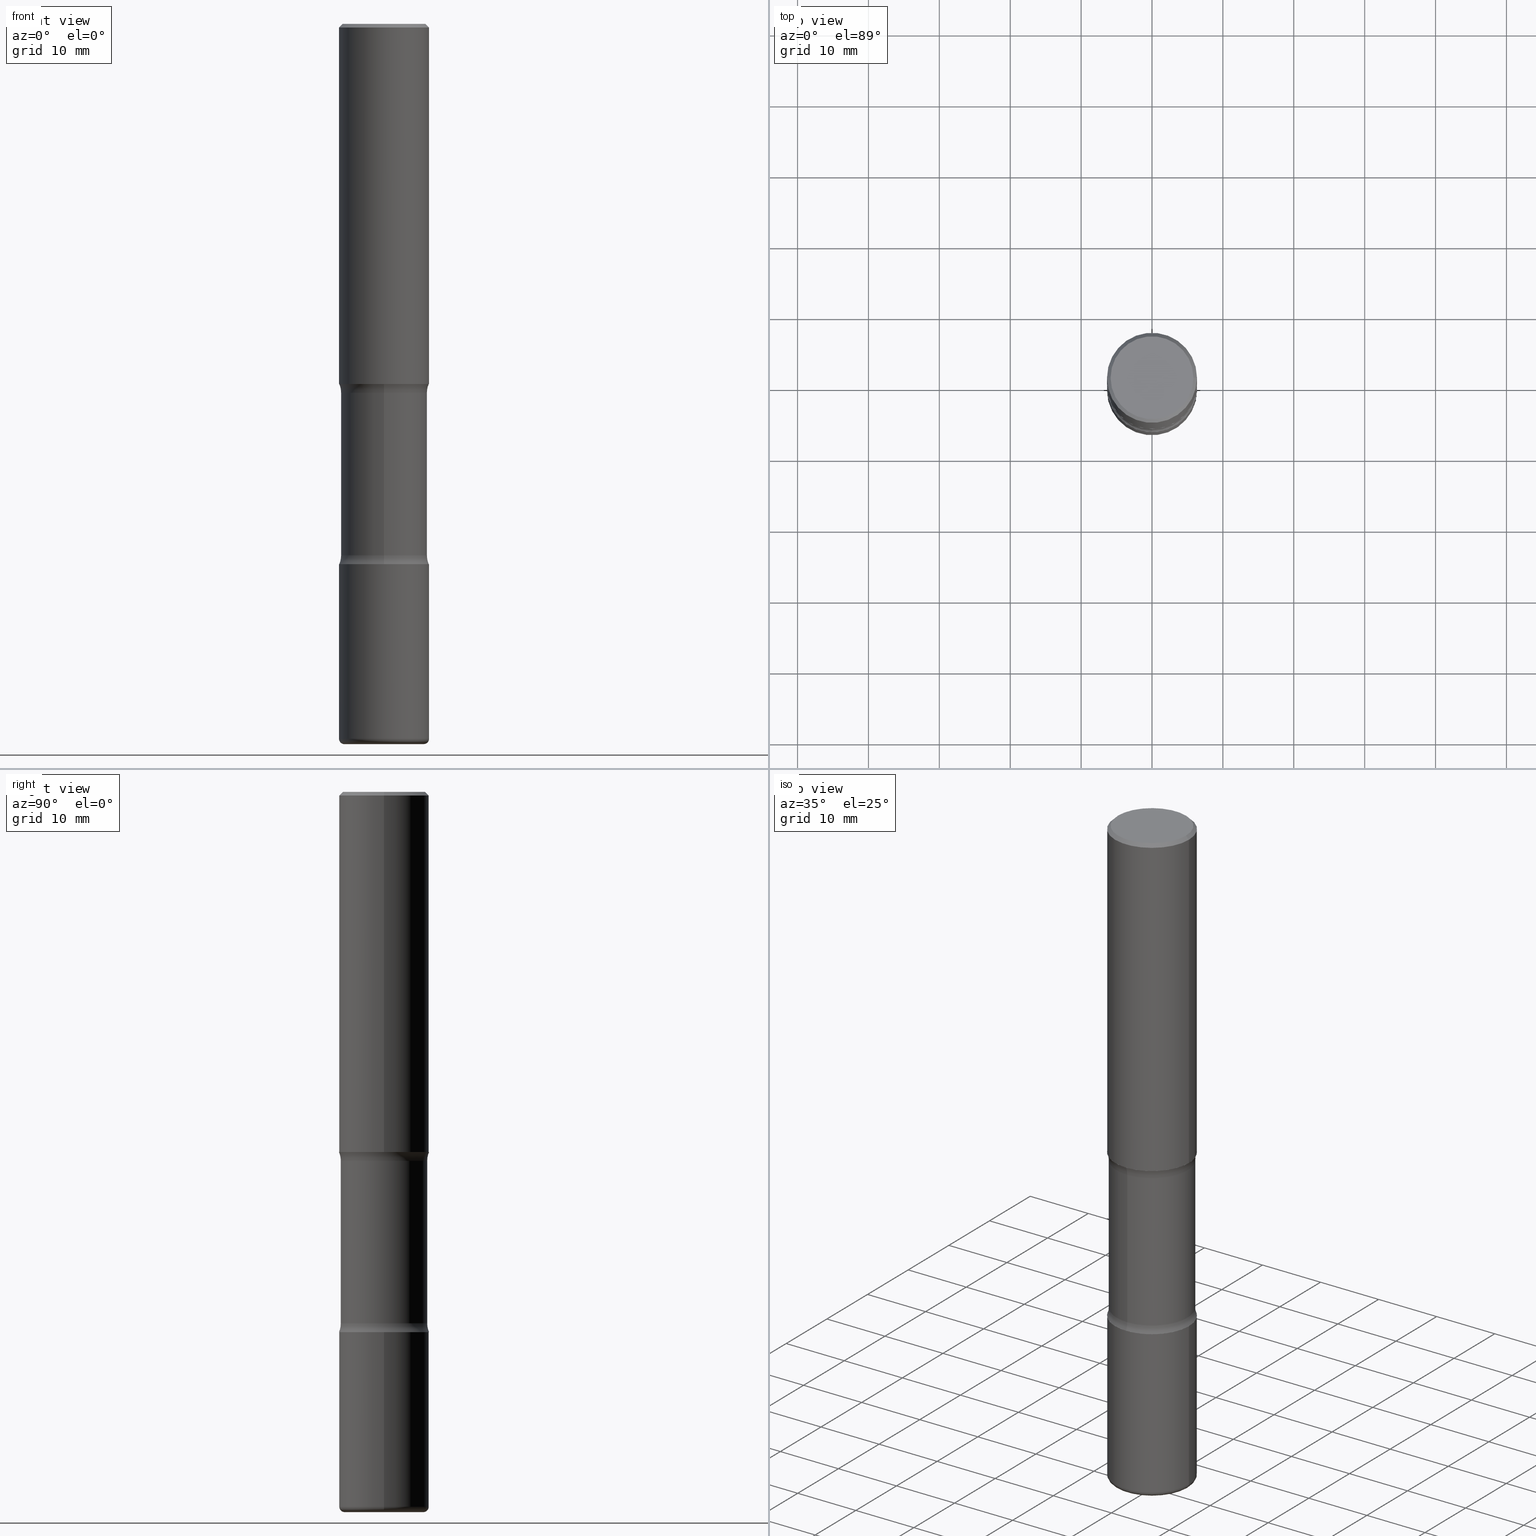
[diagram: canonical four-view strip — front | top / right | iso, engineering-drawing reading convention]
A machine part, canonical four-view strip (front | top / right | iso — engineering-drawing reading convention). The complete STEP part file that produces these views, byte-faithful:
ISO-10303-21;
HEADER;
FILE_DESCRIPTION (( 'STEP AP203' ),
    '1' );
FILE_NAME ('36463.STEP',
    '2024-03-01T23:55:31',
    ( '' ),
    ( '' ),
    'SwSTEP 2.0',
    'SolidWorks 2023',
    '' );
FILE_SCHEMA (( 'CONFIG_CONTROL_DESIGN' ));
ENDSEC;

DATA;
#1 = CC_DESIGN_PERSON_AND_ORGANIZATION_ASSIGNMENT ( #366, #328, ( #98 ) ) ;
#2 = DIRECTION ( 'NONE',  ( 1.000000000000000000, -6.982962677686266711E-15, 4.876176775795935793E-29 ) ) ;
#3 = ORIENTED_EDGE ( 'NONE', *, *, #542, .F. ) ;
#4 = CARTESIAN_POINT ( 'NONE',  ( 0.2500000000000000000, -1.745740669421566678E-15, 1.219044193948983948E-29 ) ) ;
#5 = AXIS2_PLACEMENT_3D ( 'NONE', #216, #320, #312 ) ;
#6 =( NAMED_UNIT ( * ) PLANE_ANGLE_UNIT ( ) SI_UNIT ( $, .RADIAN. ) );
#7 = CIRCLE ( 'NONE', #202, 0.2499999999999997502 ) ;
#8 = APPLICATION_CONTEXT ( 'configuration controlled 3d designs of mechanical parts and assemblies' ) ;
#9 = DIRECTION ( 'NONE',  ( 1.000000000000000000, -6.982962677686264344E-15, 0.000000000000000000 ) ) ;
#10 = EDGE_LOOP ( 'NONE', ( #117, #293, #487, #56 ) ) ;
#11 = DIRECTION ( 'NONE',  ( 6.860497997771529985E-15, 1.000000000000000000, 0.000000000000000000 ) ) ;
#12 = EDGE_CURVE ( 'NONE', #272, #25, #185, .T. ) ;
#13 = ORIENTED_EDGE ( 'NONE', *, *, #501, .F. ) ;
#14 = CIRCLE ( 'NONE', #372, 0.03000000000000029379 ) ;
#15 = AXIS2_PLACEMENT_3D ( 'NONE', #536, #331, #414 ) ;
#16 = DIRECTION ( 'NONE',  ( 2.278550371102527067E-29, -3.730518038288768294E-15, -1.000000000000000000 ) ) ;
#17 = VERTEX_POINT ( 'NONE', #290 ) ;
#18 = DIRECTION ( 'NONE',  ( -2.445468806185136597E-29, 3.491481338843145583E-15, 1.000000000000000000 ) ) ;
#19 = DIRECTION ( 'NONE',  ( 6.982962677686265922E-15, 1.000000000000000000, -3.730518038288768294E-15 ) ) ;
#20 = CC_DESIGN_PERSON_AND_ORGANIZATION_ASSIGNMENT ( #480, #171, ( #61 ) ) ;
#21 = DIRECTION ( 'NONE',  ( 2.445468806185136597E-29, -3.491481338843145583E-15, -1.000000000000000000 ) ) ;
#22 = VERTEX_POINT ( 'NONE', #197 ) ;
#23 = DIRECTION ( 'NONE',  ( -2.445468806185136597E-29, 3.491481338843145583E-15, 1.000000000000000000 ) ) ;
#24 = DIRECTION ( 'NONE',  ( 1.000000000000000000, -6.982962677686268288E-15, 0.000000000000000000 ) ) ;
#25 = VERTEX_POINT ( 'NONE', #31 ) ;
#26 = ORIENTED_EDGE ( 'NONE', *, *, #157, .F. ) ;
#27 = CIRCLE ( 'NONE', #15, 0.2200000000000000844 ) ;
#28 = DIRECTION ( 'NONE',  ( 6.982962677686265922E-15, 1.000000000000000000, -4.553079989440444614E-15 ) ) ;
#29 = LINE ( 'NONE', #122, #73 ) ;
#30 = COORDINATED_UNIVERSAL_TIME_OFFSET ( 5, 0, .BEHIND. ) ;
#31 = CARTESIAN_POINT ( 'NONE',  ( 0.2299999999999997047, -1.681434332853597236E-15, 1.149527484987431679E-29 ) ) ;
#32 = AXIS2_PLACEMENT_3D ( 'NONE', #513, #88, #63 ) ;
#33 = CARTESIAN_POINT ( 'NONE',  ( -1.646519519465069149E-15, -0.2400000000000138967, -3.999999999999998668 ) ) ;
#34 = APPLICATION_CONTEXT ( 'configuration controlled 3d designs of mechanical parts and assemblies' ) ;
#35 = ADVANCED_FACE ( 'NONE', ( #90 ), #213, .T. ) ;
#36 = CARTESIAN_POINT ( 'NONE',  ( 0.2500000000000002220, -8.728703347107860209E-15, -2.000000000000000000 ) ) ;
#37 = ADVANCED_FACE ( 'NONE', ( #392 ), #307, .F. ) ;
#38 = EDGE_LOOP ( 'NONE', ( #337, #322, #466, #26 ) ) ;
#39 = CIRCLE ( 'NONE', #191, 0.2500000000000002220 ) ;
#40 = CARTESIAN_POINT ( 'NONE',  ( -0.2200000000000000844, -1.224377770625369636E-14, -4.000000000000000000 ) ) ;
#41 = CIRCLE ( 'NONE', #289, 0.2499999999999997502 ) ;
#42 = CIRCLE ( 'NONE', #447, 0.2500000000000002776 ) ;
#43 = ORIENTED_EDGE ( 'NONE', *, *, #86, .T. ) ;
#44 = CARTESIAN_POINT ( 'NONE',  ( 5.169481762701493351E-29, -6.926683291641790899E-15, -2.048989794855664126 ) ) ;
#45 = DIRECTION ( 'NONE',  ( 1.000000000000000000, -6.982962677686271444E-15, 4.883557194083114022E-29 ) ) ;
#46 = ORIENTED_EDGE ( 'NONE', *, *, #226, .T. ) ;
#47 = DIRECTION ( 'NONE',  ( -2.445468806185136597E-29, 3.491481338843145583E-15, 1.000000000000000000 ) ) ;
#48 = LENGTH_MEASURE_WITH_UNIT ( LENGTH_MEASURE( 0.02539999999999999897 ), #240 );
#49 = VECTOR ( 'NONE', #91, 39.37007874015748143 ) ;
#50 = CARTESIAN_POINT ( 'NONE',  ( 5.169481762701493351E-29, -6.926683291641790899E-15, -2.048989794855664126 ) ) ;
#51 = APPROVAL_PERSON_ORGANIZATION ( #384, #496, #208 ) ;
#52 = DIRECTION ( 'NONE',  ( -2.445468806185136877E-29, 3.491481338843145188E-15, 1.000000000000000000 ) ) ;
#53 = ADVANCED_FACE ( 'NONE', ( #254 ), #212, .T. ) ;
#54 = VERTEX_POINT ( 'NONE', #548 ) ;
#55 = DIRECTION ( 'NONE',  ( 6.982962677686265922E-15, 1.000000000000000000, -4.553079989440442247E-15 ) ) ;
#56 = ORIENTED_EDGE ( 'NONE', *, *, #418, .F. ) ;
#57 = CARTESIAN_POINT ( 'NONE',  ( 1.675911042644774969E-15, 0.2399999999999895550, -2.951010205144337206 ) ) ;
#58 = DIRECTION ( 'NONE',  ( -2.445468806185136597E-29, 3.491481338843145583E-15, 1.000000000000000000 ) ) ;
#59 = AXIS2_PLACEMENT_3D ( 'NONE', #378, #109, #11 ) ;
#60 = VERTEX_POINT ( 'NONE', #257 ) ;
#61 = PRODUCT_DEFINITION ( 'UNKNOWN', '', #98, #174 ) ;
#62 = CARTESIAN_POINT ( 'NONE',  ( 7.264294384866648360E-29, -1.023510086215552381E-14, -2.951010205144335874 ) ) ;
#63 = DIRECTION ( 'NONE',  ( 6.982962677686266711E-15, 1.000000000000000000, -4.370956789862817205E-15 ) ) ;
#64 = ORIENTED_EDGE ( 'NONE', *, *, #85, .T. ) ;
#65 = VERTEX_POINT ( 'NONE', #133 ) ;
#66 = APPROVAL_ROLE ( '' ) ;
#67 = CARTESIAN_POINT ( 'NONE',  ( 0.000000000000000000, 0.000000000000000000, 0.000000000000000000 ) ) ;
#68 = CARTESIAN_POINT ( 'NONE',  ( 4.890937612370273194E-29, -6.982962677686291165E-15, -2.000000000000000000 ) ) ;
#69 = APPROVAL_STATUS ( 'not_yet_approved' ) ;
#70 = ORIENTED_EDGE ( 'NONE', *, *, #502, .T. ) ;
#71 = DIRECTION ( 'NONE',  ( 1.000000000000000000, -6.982962677686271444E-15, 4.883557194083114022E-29 ) ) ;
#72 = EDGE_CURVE ( 'NONE', #292, #189, #42, .T. ) ;
#73 = VECTOR ( 'NONE', #457, 39.37007874015748143 ) ;
#74 = SECURITY_CLASSIFICATION ( '', '', #105 ) ;
#75 = DIRECTION ( 'NONE',  ( 2.278550371102527067E-29, -3.730518038288768294E-15, -1.000000000000000000 ) ) ;
#76 = CLOSED_SHELL ( 'NONE', ( #523, #519, #82, #53, #455, #111 ) ) ;
#77 = CARTESIAN_POINT ( 'NONE',  ( 7.336406418555409790E-29, -1.047444401652943635E-14, -3.000000000000000444 ) ) ;
#78 = DIRECTION ( 'NONE',  ( 2.438088387897960049E-29, -3.491481338843145188E-15, -1.000000000000000000 ) ) ;
#79 = ADVANCED_FACE ( 'NONE', ( #308 ), #342, .F. ) ;
#80 = ORIENTED_EDGE ( 'NONE', *, *, #317, .T. ) ;
#81 = ADVANCED_FACE ( 'NONE', ( #546 ), #345, .F. ) ;
#82 = ADVANCED_FACE ( 'NONE', ( #551 ), #130, .T. ) ;
#83 = DATE_AND_TIME ( #304, #409 ) ;
#84 = DIRECTION ( 'NONE',  ( 2.278550371102527067E-29, -3.730518038288768294E-15, -1.000000000000000000 ) ) ;
#85 = EDGE_CURVE ( 'NONE', #223, #60, #508, .T. ) ;
#86 = EDGE_CURVE ( 'NONE', #412, #22, #249, .T. ) ;
#87 = CIRCLE ( 'NONE', #209, 0.1250000000000001110 ) ;
#88 = DIRECTION ( 'NONE',  ( 2.278550371102527067E-29, -3.730518038288768294E-15, -1.000000000000000000 ) ) ;
#89 = APPROVAL_PERSON_ORGANIZATION ( #201, #538, #123 ) ;
#90 = FACE_OUTER_BOUND ( 'NONE', #303, .T. ) ;
#91 = DIRECTION ( 'NONE',  ( 2.278550371102527067E-29, -3.730518038288768294E-15, -1.000000000000000000 ) ) ;
#92 = ORIENTED_EDGE ( 'NONE', *, *, #367, .T. ) ;
#93 = DIRECTION ( 'NONE',  ( 2.278550371102527067E-29, -3.730518038288768294E-15, -1.000000000000000000 ) ) ;
#94 = FACE_OUTER_BOUND ( 'NONE', #121, .T. ) ;
#95 = ORIENTED_EDGE ( 'NONE', *, *, #157, .T. ) ;
#96 = AXIS2_PLACEMENT_3D ( 'NONE', #295, #467, #169 ) ;
#97 = CARTESIAN_POINT ( 'NONE',  ( 0.2499999999999997502, -1.784954126219744217E-15, -0.02000000000000006981 ) ) ;
#98 = PRODUCT_DEFINITION_FORMATION_WITH_SPECIFIED_SOURCE ( 'ANY', '', #158, .NOT_KNOWN. ) ;
#99 = VERTEX_POINT ( 'NONE', #407 ) ;
#100 = DIRECTION ( 'NONE',  ( -2.438088387897960049E-29, 3.491481338843145188E-15, 1.000000000000000000 ) ) ;
#101 = EDGE_LOOP ( 'NONE', ( #170, #264, #471, #504 ) ) ;
#102 = CARTESIAN_POINT ( 'NONE',  ( 4.890937612370289799E-31, -6.982962677686315028E-17, -0.02000000000000006981 ) ) ;
#103 = EDGE_CURVE ( 'NONE', #498, #412, #87, .T. ) ;
#104 = AXIS2_PLACEMENT_3D ( 'NONE', #102, #227, #259 ) ;
#105 = SECURITY_CLASSIFICATION_LEVEL ( 'unclassified' ) ;
#106 = APPROVAL_PERSON_ORGANIZATION ( #233, #358, #66 ) ;
#107 = ORIENTED_EDGE ( 'NONE', *, *, #469, .T. ) ;
#108 = DIRECTION ( 'NONE',  ( -2.445468806185136597E-29, 3.491481338843145583E-15, 1.000000000000000000 ) ) ;
#109 = DIRECTION ( 'NONE',  ( 1.000000000000000000, -6.860497997771530774E-15, 4.837871524335594577E-29 ) ) ;
#110 = CARTESIAN_POINT ( 'NONE',  ( 7.336406418555409790E-29, -1.047444401652943635E-14, -3.000000000000000444 ) ) ;
#111 = ADVANCED_FACE ( 'NONE', ( #94 ), #402, .F. ) ;
#112 = ORIENTED_EDGE ( 'NONE', *, *, #279, .F. ) ;
#113 = EDGE_LOOP ( 'NONE', ( #350, #112, #181, #43 ) ) ;
#114 = DIRECTION ( 'NONE',  ( 2.278550371102527067E-29, -3.730518038288768294E-15, -1.000000000000000000 ) ) ;
#115 = EDGE_CURVE ( 'NONE', #251, #65, #445, .T. ) ;
#116 = CARTESIAN_POINT ( 'NONE',  ( 0.2500000000000002220, -1.222018468595100461E-14, -3.000000000000000444 ) ) ;
#117 = ORIENTED_EDGE ( 'NONE', *, *, #410, .F. ) ;
#118 = TOROIDAL_SURFACE ( 'NONE', #552, 0.3649999999999999356, 0.1250000000000001110 ) ;
#119 = CIRCLE ( 'NONE', #221, 0.2399999999999996025 ) ;
#120 = ORIENTED_EDGE ( 'NONE', *, *, #410, .T. ) ;
#121 = EDGE_LOOP ( 'NONE', ( #422, #476 ) ) ;
#122 = CARTESIAN_POINT ( 'NONE',  ( -0.2500000000000000000, 1.776356839400250465E-15, -1.229733772563726445E-29 ) ) ;
#123 = APPROVAL_ROLE ( '' ) ;
#124 = DIRECTION ( 'NONE',  ( -2.278550371102527067E-29, 3.730518038288768294E-15, 1.000000000000000000 ) ) ;
#125 = DATE_TIME_ROLE ( 'creation_date' ) ;
#126 = ORIENTED_EDGE ( 'NONE', *, *, #501, .T. ) ;
#127 = ADVANCED_FACE ( 'NONE', ( #404 ), #398, .F. ) ;
#128 = AXIS2_PLACEMENT_3D ( 'NONE', #214, #355, #521 ) ;
#129 = CC_DESIGN_APPROVAL ( #538, ( #61 ) ) ;
#130 = PLANE ( 'NONE',  #349 ) ;
#131 = APPROVAL_STATUS ( 'not_yet_approved' ) ;
#132 = ADVANCED_FACE ( 'NONE', ( #396 ), #493, .F. ) ;
#133 = CARTESIAN_POINT ( 'NONE',  ( 0.2499999999999997502, -1.784954126219744217E-15, -0.02000000000000006981 ) ) ;
#134 = AXIS2_PLACEMENT_3D ( 'NONE', #425, #282, #381 ) ;
#135 = AXIS2_PLACEMENT_3D ( 'NONE', #253, #309, #395 ) ;
#136 = CARTESIAN_POINT ( 'NONE',  ( -0.2500000000000003886, -1.208482407580703534E-14, -3.969999999999999307 ) ) ;
#137 = CARTESIAN_POINT ( 'NONE',  ( -0.2299999999999997047, 1.640996229256270744E-15, -1.135408596578604579E-29 ) ) ;
#138 = CARTESIAN_POINT ( 'NONE',  ( 1.675911042644797846E-15, 0.2399999999999854750, -4.000000000000000888 ) ) ;
#139 = PRODUCT_DEFINITION_SHAPE ( 'NONE', 'NONE',  #61 ) ;
#140 = VERTEX_POINT ( 'NONE', #488 ) ;
#141 = AXIS2_PLACEMENT_3D ( 'NONE', #179, #361, #262 ) ;
#142 = PLANE ( 'NONE',  #263 ) ;
#143 =( GEOMETRIC_REPRESENTATION_CONTEXT ( 3 ) GLOBAL_UNCERTAINTY_ASSIGNED_CONTEXT ( ( #388 ) ) GLOBAL_UNIT_ASSIGNED_CONTEXT ( ( #148, #6, #365 ) ) REPRESENTATION_CONTEXT ( 'NONE', 'WORKASPACE' ) );
#144 = MANIFOLD_SOLID_BREP ( 'Body-Move/Copy2[1]', #76 ) ;
#145 = AXIS2_PLACEMENT_3D ( 'NONE', #44, #224, #180 ) ;
#146 = EDGE_LOOP ( 'NONE', ( #406, #244, #242, #64 ) ) ;
#147 = DIRECTION ( 'NONE',  ( 1.000000000000000000, -6.982962677686270655E-15, 0.000000000000000000 ) ) ;
#148 =( CONVERSION_BASED_UNIT ( 'INCH', #48 ) LENGTH_UNIT ( ) NAMED_UNIT ( #314 ) );
#149 = PRODUCT_RELATED_PRODUCT_CATEGORY ( 'detail', '', ( #158 ) ) ;
#150 = VERTEX_POINT ( 'NONE', #40 ) ;
#151 = ORIENTED_EDGE ( 'NONE', *, *, #226, .F. ) ;
#152 = DATE_AND_TIME ( #369, #156 ) ;
#153 = CARTESIAN_POINT ( 'NONE',  ( 9.708511160554990630E-29, -1.386118091520728581E-14, -3.969999999999999307 ) ) ;
#154 = CIRCLE ( 'NONE', #486, 0.2299999999999997047 ) ;
#155 = DIRECTION ( 'NONE',  ( 2.278550371102527067E-29, -3.730518038288768294E-15, -1.000000000000000000 ) ) ;
#156 = LOCAL_TIME ( 18, 55, 31.00000000000000000, #556 ) ;
#157 = EDGE_CURVE ( 'NONE', #344, #412, #359, .T. ) ;
#158 = PRODUCT ( '36463', '36463', '', ( #547 ) ) ;
#159 = ORIENTED_EDGE ( 'NONE', *, *, #441, .F. ) ;
#160 = DIRECTION ( 'NONE',  ( 0.000000000000000000, 0.000000000000000000, 1.000000000000000000 ) ) ;
#161 = VERTEX_POINT ( 'NONE', #316 ) ;
#162 = EDGE_LOOP ( 'NONE', ( #334, #92, #298, #165 ) ) ;
#163 = DIRECTION ( 'NONE',  ( -1.000000000000000000, 6.982962677686267499E-15, 0.000000000000000000 ) ) ;
#164 = AXIS2_PLACEMENT_3D ( 'NONE', #458, #58, #9 ) ;
#165 = ORIENTED_EDGE ( 'NONE', *, *, #502, .F. ) ;
#166 = EDGE_CURVE ( 'NONE', #25, #65, #485, .T. ) ;
#167 = DIRECTION ( 'NONE',  ( 1.000000000000000000, -6.982962677686266711E-15, 4.876176775795935793E-29 ) ) ;
#168 = APPROVAL_DATE_TIME ( #327, #496 ) ;
#169 = DIRECTION ( 'NONE',  ( 1.000000000000000000, -6.982962677686268288E-15, 0.000000000000000000 ) ) ;
#170 = ORIENTED_EDGE ( 'NONE', *, *, #526, .F. ) ;
#171 = PERSON_AND_ORGANIZATION_ROLE ( 'creator' ) ;
#172 = AXIS2_PLACEMENT_3D ( 'NONE', #377, #429, #438 ) ;
#173 = EDGE_CURVE ( 'NONE', #344, #140, #228, .T. ) ;
#174 = DESIGN_CONTEXT ( 'detailed design', #34, 'design' ) ;
#175 = CARTESIAN_POINT ( 'NONE',  ( 9.708511160554990630E-29, -1.386118091520728581E-14, -3.969999999999999307 ) ) ;
#176 = FACE_OUTER_BOUND ( 'NONE', #497, .T. ) ;
#177 = TOROIDAL_SURFACE ( 'NONE', #319, 0.3649999999999996025, 0.1250000000000000000 ) ;
#178 = CARTESIAN_POINT ( 'NONE',  ( 9.708511160554990630E-29, -1.386118091520728581E-14, -3.969999999999999307 ) ) ;
#179 = CARTESIAN_POINT ( 'NONE',  ( 2.758072199146696450E-29, -1.703087920132366177E-14, -2.999999999999999556 ) ) ;
#180 = DIRECTION ( 'NONE',  ( 6.982962677686265922E-15, 1.000000000000000000, -3.414809992080334644E-15 ) ) ;
#181 = ORIENTED_EDGE ( 'NONE', *, *, #103, .T. ) ;
#182 = CIRCLE ( 'NONE', #463, 0.2499999999999999722 ) ;
#183 = CARTESIAN_POINT ( 'NONE',  ( -0.2200000000000002509, -1.229798689653506559E-14, -3.969999999999999307 ) ) ;
#184 = FACE_OUTER_BOUND ( 'NONE', #225, .T. ) ;
#185 = CIRCLE ( 'NONE', #401, 0.2299999999999997047 ) ;
#186 = PERSON_AND_ORGANIZATION_ROLE ( 'creator' ) ;
#187 = ORIENTED_EDGE ( 'NONE', *, *, #387, .F. ) ;
#188 = CARTESIAN_POINT ( 'NONE',  ( 7.224780703306799164E-29, -1.029168670312831509E-14, -2.951010205144335874 ) ) ;
#189 = VERTEX_POINT ( 'NONE', #136 ) ;
#190 = ADVANCED_FACE ( 'NONE', ( #176 ), #142, .F. ) ;
#191 = AXIS2_PLACEMENT_3D ( 'NONE', #364, #47, #324 ) ;
#192 = CC_DESIGN_APPROVAL ( #358, ( #74 ) ) ;
#193 = AXIS2_PLACEMENT_3D ( 'NONE', #443, #198, #382 ) ;
#194 = EDGE_LOOP ( 'NONE', ( #540, #120 ) ) ;
#195 = ORIENTED_EDGE ( 'NONE', *, *, #250, .T. ) ;
#196 = CARTESIAN_POINT ( 'NONE',  ( 0.2500000000000003886, -1.560692158462885722E-14, -3.969999999999999307 ) ) ;
#197 = CARTESIAN_POINT ( 'NONE',  ( -1.680822009453952452E-15, -0.2400000000000101497, -2.951010205144334986 ) ) ;
#198 = DIRECTION ( 'NONE',  ( 2.278550371102527067E-29, -3.730518038288768294E-15, -1.000000000000000000 ) ) ;
#199 = EDGE_CURVE ( 'NONE', #17, #292, #288, .T. ) ;
#200 = AXIS2_PLACEMENT_3D ( 'NONE', #68, #473, #24 ) ;
#201 = PERSON_AND_ORGANIZATION ( #323, #509 ) ;
#202 = AXIS2_PLACEMENT_3D ( 'NONE', #411, #283, #321 ) ;
#203 = ORIENTED_EDGE ( 'NONE', *, *, #354, .F. ) ;
#204 = CYLINDRICAL_SURFACE ( 'NONE', #134, 0.2399999999999996858 ) ;
#205 = DIRECTION ( 'NONE',  ( -2.445468806185136597E-29, 3.491481338843145583E-15, 1.000000000000000000 ) ) ;
#206 = DIRECTION ( 'NONE',  ( -2.445468806185136597E-29, 3.491481338843145583E-15, 1.000000000000000000 ) ) ;
#207 = CC_DESIGN_PERSON_AND_ORGANIZATION_ASSIGNMENT ( #343, #436, ( #158 ) ) ;
#208 = APPROVAL_ROLE ( '' ) ;
#209 = AXIS2_PLACEMENT_3D ( 'NONE', #554, #313, #484 ) ;
#210 = LOCAL_TIME ( 18, 55, 31.00000000000000000, #434 ) ;
#211 = SHAPE_DEFINITION_REPRESENTATION ( #139, #301 ) ;
#212 = TOROIDAL_SURFACE ( 'NONE', #302, 0.2200000000000002509, 0.03000000000000027645 ) ;
#213 = CYLINDRICAL_SURFACE ( 'NONE', #537, 0.2500000000000000000 ) ;
#214 = CARTESIAN_POINT ( 'NONE',  ( 7.264294384866648360E-29, -1.023510086215552381E-14, -2.951010205144335874 ) ) ;
#215 = PERSON_AND_ORGANIZATION_ROLE ( 'classification_officer' ) ;
#216 = CARTESIAN_POINT ( 'NONE',  ( 0.2200000000000002509, -1.539743270429826732E-14, -3.969999999999999307 ) ) ;
#217 = CC_DESIGN_PERSON_AND_ORGANIZATION_ASSIGNMENT ( #277, #215, ( #74 ) ) ;
#218 = AXIS2_PLACEMENT_3D ( 'NONE', #522, #448, #559 ) ;
#219 = ORIENTED_EDGE ( 'NONE', *, *, #72, .F. ) ;
#220 = AXIS2_PLACEMENT_3D ( 'NONE', #370, #454, #2 ) ;
#221 = AXIS2_PLACEMENT_3D ( 'NONE', #50, #530, #325 ) ;
#222 = DIRECTION ( 'NONE',  ( 2.278550371102527067E-29, -3.730518038288768294E-15, -1.000000000000000000 ) ) ;
#223 = VERTEX_POINT ( 'NONE', #449 ) ;
#224 = DIRECTION ( 'NONE',  ( 2.278550371102527067E-29, -3.730518038288768294E-15, -1.000000000000000000 ) ) ;
#225 = EDGE_LOOP ( 'NONE', ( #524, #195, #219, #499 ) ) ;
#226 = EDGE_CURVE ( 'NONE', #251, #99, #39, .T. ) ;
#227 = DIRECTION ( 'NONE',  ( 2.445468806185136597E-29, -3.491481338843145583E-15, -1.000000000000000000 ) ) ;
#228 = CIRCLE ( 'NONE', #145, 0.2399999999999996025 ) ;
#229 = VECTOR ( 'NONE', #52, 39.37007874015748143 ) ;
#230 = CYLINDRICAL_SURFACE ( 'NONE', #220, 0.2500000000000002776 ) ;
#231 = FACE_OUTER_BOUND ( 'NONE', #38, .T. ) ;
#232 = ORIENTED_EDGE ( 'NONE', *, *, #85, .F. ) ;
#233 = PERSON_AND_ORGANIZATION ( #323, #509 ) ;
#234 = DIRECTION ( 'NONE',  ( 1.000000000000000000, -6.982962677686266711E-15, 4.876176775795935793E-29 ) ) ;
#235 = PERSON_AND_ORGANIZATION ( #323, #509 ) ;
#236 = FACE_OUTER_BOUND ( 'NONE', #162, .T. ) ;
#237 = CARTESIAN_POINT ( 'NONE',  ( -0.2499999999999997502, 1.675911042644701999E-15, -0.02000000000000006981 ) ) ;
#238 = AXIS2_PLACEMENT_3D ( 'NONE', #110, #374, #539 ) ;
#239 = CARTESIAN_POINT ( 'NONE',  ( 4.890937612370289799E-31, -6.982962677686315028E-17, -0.02000000000000006981 ) ) ;
#240 =( LENGTH_UNIT ( ) NAMED_UNIT ( * ) SI_UNIT ( $, .METRE. ) );
#241 = DIRECTION ( 'NONE',  ( 1.000000000000000000, -6.982962677686264344E-15, 0.000000000000000000 ) ) ;
#242 = ORIENTED_EDGE ( 'NONE', *, *, #510, .T. ) ;
#243 = FACE_OUTER_BOUND ( 'NONE', #363, .T. ) ;
#244 = ORIENTED_EDGE ( 'NONE', *, *, #173, .F. ) ;
#245 = ORIENTED_EDGE ( 'NONE', *, *, #526, .T. ) ;
#246 = ADVANCED_FACE ( 'NONE', ( #557 ), #543, .T. ) ;
#247 = DIRECTION ( 'NONE',  ( 6.982962677686265922E-15, 1.000000000000000000, -3.278217592397116257E-15 ) ) ;
#248 = CARTESIAN_POINT ( 'NONE',  ( 9.708511160554990630E-29, -1.386118091520728581E-14, -3.969999999999999307 ) ) ;
#249 = CIRCLE ( 'NONE', #517, 0.2399999999999998246 ) ;
#250 = EDGE_CURVE ( 'NONE', #150, #189, #14, .T. ) ;
#251 = VERTEX_POINT ( 'NONE', #36 ) ;
#252 = CYLINDRICAL_SURFACE ( 'NONE', #535, 0.2500000000000002776 ) ;
#253 = CARTESIAN_POINT ( 'NONE',  ( 2.548781377355536417E-15, 0.3649999999999927192, -2.048989794855665458 ) ) ;
#254 = FACE_OUTER_BOUND ( 'NONE', #494, .T. ) ;
#255 = CIRCLE ( 'NONE', #32, 0.2500000000000002220 ) ;
#256 = CIRCLE ( 'NONE', #135, 0.1250000000000000000 ) ;
#257 = CARTESIAN_POINT ( 'NONE',  ( -1.715124499442831615E-15, -0.2500000000000066613, -1.999999999999999112 ) ) ;
#258 = DIRECTION ( 'NONE',  ( 1.000000000000000000, -6.982962677686267499E-15, 0.000000000000000000 ) ) ;
#259 = DIRECTION ( 'NONE',  ( -1.000000000000000000, 6.982962677686267499E-15, 0.000000000000000000 ) ) ;
#260 = EDGE_CURVE ( 'NONE', #189, #292, #446, .T. ) ;
#261 = ORIENTED_EDGE ( 'NONE', *, *, #550, .F. ) ;
#262 = DIRECTION ( 'NONE',  ( -1.000000000000000000, 6.982962677686265922E-15, -4.876176775795935793E-29 ) ) ;
#263 = AXIS2_PLACEMENT_3D ( 'NONE', #483, #100, #525 ) ;
#264 = ORIENTED_EDGE ( 'NONE', *, *, #299, .T. ) ;
#265 = CC_DESIGN_SECURITY_CLASSIFICATION ( #74, ( #98 ) ) ;
#266 = DATE_TIME_ROLE ( 'classification_date' ) ;
#267 = DIRECTION ( 'NONE',  ( 0.7071067811865473507, -7.319954787623256045E-15, -0.7071067811865476838 ) ) ;
#268 = AXIS2_PLACEMENT_3D ( 'NONE', #503, #124, #297 ) ;
#269 = ADVANCED_FACE ( 'NONE', ( #491 ), #177, .F. ) ;
#270 = EDGE_LOOP ( 'NONE', ( #203, #371 ) ) ;
#271 = DIRECTION ( 'NONE',  ( -2.445468806185136877E-29, 3.491481338843145188E-15, 1.000000000000000000 ) ) ;
#272 = VERTEX_POINT ( 'NONE', #137 ) ;
#273 = DIRECTION ( 'NONE',  ( -2.445468806185136597E-29, 3.491481338843145583E-15, 1.000000000000000000 ) ) ;
#274 = CARTESIAN_POINT ( 'NONE',  ( 0.000000000000000000, 0.000000000000000000, 0.000000000000000000 ) ) ;
#275 = VECTOR ( 'NONE', #93, 39.37007874015748143 ) ;
#276 = TOROIDAL_SURFACE ( 'NONE', #528, 0.2200000000000002509, 0.03000000000000027645 ) ;
#277 = PERSON_AND_ORGANIZATION ( #323, #509 ) ;
#278 = ORIENTED_EDGE ( 'NONE', *, *, #115, .F. ) ;
#279 = EDGE_CURVE ( 'NONE', #498, #54, #534, .T. ) ;
#280 = ORIENTED_EDGE ( 'NONE', *, *, #332, .T. ) ;
#281 = CARTESIAN_POINT ( 'NONE',  ( 9.614956789657936857E-29, -1.420496205481820465E-14, -4.000000000000000000 ) ) ;
#282 = DIRECTION ( 'NONE',  ( 2.278550371102527067E-29, -3.730518038288768294E-15, -1.000000000000000000 ) ) ;
#283 = DIRECTION ( 'NONE',  ( -2.445468806185136597E-29, 3.491481338843145583E-15, 1.000000000000000000 ) ) ;
#284 = EDGE_LOOP ( 'NONE', ( #232, #403 ) ) ;
#285 = DIRECTION ( 'NONE',  ( -2.445468806185136597E-29, 3.491481338843145583E-15, 1.000000000000000000 ) ) ;
#286 = ORIENTED_EDGE ( 'NONE', *, *, #418, .T. ) ;
#287 = LINE ( 'NONE', #237, #481 ) ;
#288 = CIRCLE ( 'NONE', #5, 0.03000000000000029379 ) ;
#289 = AXIS2_PLACEMENT_3D ( 'NONE', #353, #397, #258 ) ;
#290 = CARTESIAN_POINT ( 'NONE',  ( 0.2200000000000000844, -1.550217714446356069E-14, -4.000000000000000000 ) ) ;
#291 = DIRECTION ( 'NONE',  ( 1.000000000000000000, 0.000000000000000000, 0.000000000000000000 ) ) ;
#292 = VERTEX_POINT ( 'NONE', #196 ) ;
#293 = ORIENTED_EDGE ( 'NONE', *, *, #166, .T. ) ;
#294 = CC_DESIGN_DATE_AND_TIME_ASSIGNMENT ( #511, #125, ( #61 ) ) ;
#295 = CARTESIAN_POINT ( 'NONE',  ( 9.781875224740546387E-29, -1.396592535537258233E-14, -4.000000000000000000 ) ) ;
#296 = CALENDAR_DATE ( 2024, 1, 3 ) ;
#297 = DIRECTION ( 'NONE',  ( -6.982962677686265922E-15, -1.000000000000000000, 3.730518038288768294E-15 ) ) ;
#298 = ORIENTED_EDGE ( 'NONE', *, *, #115, .T. ) ;
#299 = EDGE_CURVE ( 'NONE', #140, #60, #527, .T. ) ;
#300 = APPLICATION_PROTOCOL_DEFINITION ( 'international standard', 'config_control_design', 1994, #34 ) ;
#301 = ADVANCED_BREP_SHAPE_REPRESENTATION ( '36463', ( #144, #514, #520, #373 ), #143 ) ;
#302 = AXIS2_PLACEMENT_3D ( 'NONE', #175, #205, #71 ) ;
#303 = EDGE_LOOP ( 'NONE', ( #46, #280, #261, #278 ) ) ;
#304 = CALENDAR_DATE ( 2024, 1, 3 ) ;
#305 = DIRECTION ( 'NONE',  ( -1.000000000000000000, 6.982962677686265922E-15, -4.876176775795935793E-29 ) ) ;
#306 = APPROVAL_DATE_TIME ( #83, #358 ) ;
#307 = PLANE ( 'NONE',  #474 ) ;
#308 = FACE_OUTER_BOUND ( 'NONE', #284, .T. ) ;
#309 = DIRECTION ( 'NONE',  ( -1.000000000000000000, 6.982962677686265922E-15, -4.883557194083112340E-29 ) ) ;
#310 = CIRCLE ( 'NONE', #164, 0.2500000000000002220 ) ;
#311 = EDGE_CURVE ( 'NONE', #54, #22, #380, .T. ) ;
#312 = DIRECTION ( 'NONE',  ( 1.000000000000000000, -6.982962677686264344E-15, 0.000000000000000000 ) ) ;
#313 = DIRECTION ( 'NONE',  ( -1.000000000000000000, 6.982962677686265922E-15, -4.883557194083112340E-29 ) ) ;
#314 = DIMENSIONAL_EXPONENTS ( 1.000000000000000000, 0.000000000000000000, 0.000000000000000000, 0.000000000000000000, 0.000000000000000000, 0.000000000000000000, 0.000000000000000000 ) ;
#315 = ORIENTED_EDGE ( 'NONE', *, *, #260, .T. ) ;
#316 = CARTESIAN_POINT ( 'NONE',  ( -0.2500000000000002220, -1.039145562646810746E-14, -3.000000000000000444 ) ) ;
#317 = EDGE_CURVE ( 'NONE', #54, #498, #255, .T. ) ;
#318 = CARTESIAN_POINT ( 'NONE',  ( 1.745740669421641619E-15, 0.2499999999999897304, -3.000000000000000888 ) ) ;
#319 = AXIS2_PLACEMENT_3D ( 'NONE', #413, #16, #415 ) ;
#320 = DIRECTION ( 'NONE',  ( -6.982962677686266711E-15, -1.000000000000000000, 3.491481338843145583E-15 ) ) ;
#321 = DIRECTION ( 'NONE',  ( 1.000000000000000000, -6.982962677686267499E-15, 0.000000000000000000 ) ) ;
#322 = ORIENTED_EDGE ( 'NONE', *, *, #441, .T. ) ;
#323 = PERSON ( 'UNSPECIFIED', 'UNSPECIFIED', 'UNSPECIFIED', ('UNSPECIFIED'), ('UNSPECIFIED'), ('UNSPECIFIED') ) ;
#324 = DIRECTION ( 'NONE',  ( 1.000000000000000000, -6.982962677686268288E-15, 0.000000000000000000 ) ) ;
#325 = DIRECTION ( 'NONE',  ( 6.982962677686265922E-15, 1.000000000000000000, -3.414809992080334644E-15 ) ) ;
#326 = VERTEX_POINT ( 'NONE', #116 ) ;
#327 = DATE_AND_TIME ( #532, #518 ) ;
#328 = PERSON_AND_ORGANIZATION_ROLE ( 'design_supplier' ) ;
#329 = CARTESIAN_POINT ( 'NONE',  ( 0.2500000000000002776, -1.745740669421568650E-15, 1.219044193948985350E-29 ) ) ;
#330 = ORIENTED_EDGE ( 'NONE', *, *, #72, .T. ) ;
#331 = DIRECTION ( 'NONE',  ( -2.445468806185136597E-29, 3.491481338843145583E-15, 1.000000000000000000 ) ) ;
#332 = EDGE_CURVE ( 'NONE', #99, #379, #29, .T. ) ;
#333 = CONICAL_SURFACE ( 'NONE', #348, 0.2499999999999997502, 0.7853981633974480570 ) ;
#334 = ORIENTED_EDGE ( 'NONE', *, *, #332, .F. ) ;
#335 = APPROVAL_STATUS ( 'not_yet_approved' ) ;
#336 = ADVANCED_FACE ( 'NONE', ( #243 ), #204, .T. ) ;
#337 = ORIENTED_EDGE ( 'NONE', *, *, #173, .T. ) ;
#338 = DIRECTION ( 'NONE',  ( 1.000000000000000000, -6.982962677686266711E-15, 4.876176775795935793E-29 ) ) ;
#339 = EDGE_LOOP ( 'NONE', ( #357, #453, #286, #70 ) ) ;
#340 = AXIS2_PLACEMENT_3D ( 'NONE', #77, #426, #241 ) ;
#341 = FACE_OUTER_BOUND ( 'NONE', #464, .T. ) ;
#342 = PLANE ( 'NONE',  #193 ) ;
#343 = PERSON_AND_ORGANIZATION ( #323, #509 ) ;
#344 = VERTEX_POINT ( 'NONE', #541 ) ;
#345 = PLANE ( 'NONE',  #268 ) ;
#346 = DATE_AND_TIME ( #475, #544 ) ;
#347 = ADVANCED_FACE ( 'NONE', ( #385 ), #333, .T. ) ;
#348 = AXIS2_PLACEMENT_3D ( 'NONE', #239, #21, #163 ) ;
#349 = AXIS2_PLACEMENT_3D ( 'NONE', #470, #78, #305 ) ;
#350 = ORIENTED_EDGE ( 'NONE', *, *, #311, .F. ) ;
#351 = DIRECTION ( 'NONE',  ( 1.000000000000000000, -6.982962677686266711E-15, 4.876176775795935793E-29 ) ) ;
#352 = DIRECTION ( 'NONE',  ( -2.445468806185136597E-29, 3.491481338843145583E-15, 1.000000000000000000 ) ) ;
#353 = CARTESIAN_POINT ( 'NONE',  ( 4.890937612370289799E-31, -6.982962677686315028E-17, -0.02000000000000006981 ) ) ;
#354 = EDGE_CURVE ( 'NONE', #17, #150, #356, .T. ) ;
#355 = DIRECTION ( 'NONE',  ( 2.278550371102527067E-29, -3.730518038288768294E-15, -1.000000000000000000 ) ) ;
#356 = CIRCLE ( 'NONE', #96, 0.2200000000000000844 ) ;
#357 = ORIENTED_EDGE ( 'NONE', *, *, #166, .F. ) ;
#358 = APPROVAL ( #335, 'UNSPECIFIED' ) ;
#359 = LINE ( 'NONE', #138, #49 ) ;
#360 = ORIENTED_EDGE ( 'NONE', *, *, #555, .F. ) ;
#361 = DIRECTION ( 'NONE',  ( 2.438088387897960049E-29, -3.491481338843145188E-15, -1.000000000000000000 ) ) ;
#362 = AXIS2_PLACEMENT_3D ( 'NONE', #274, #18, #338 ) ;
#363 = EDGE_LOOP ( 'NONE', ( #159, #245, #95, #3 ) ) ;
#364 = CARTESIAN_POINT ( 'NONE',  ( 4.890937612370273194E-29, -6.982962677686291165E-15, -2.000000000000000000 ) ) ;
#365 =( NAMED_UNIT ( * ) SI_UNIT ( $, .STERADIAN. ) SOLID_ANGLE_UNIT ( ) );
#366 = PERSON_AND_ORGANIZATION ( #323, #509 ) ;
#367 = EDGE_CURVE ( 'NONE', #99, #251, #451, .T. ) ;
#368 = EDGE_LOOP ( 'NONE', ( #330, #465, #360, #13 ) ) ;
#369 = CALENDAR_DATE ( 2024, 1, 3 ) ;
#370 = CARTESIAN_POINT ( 'NONE',  ( 0.000000000000000000, 0.000000000000000000, 0.000000000000000000 ) ) ;
#371 = ORIENTED_EDGE ( 'NONE', *, *, #469, .F. ) ;
#372 = AXIS2_PLACEMENT_3D ( 'NONE', #183, #444, #529 ) ;
#373 = AXIS2_PLACEMENT_3D ( 'NONE', #478, #160, #291 ) ;
#374 = DIRECTION ( 'NONE',  ( 2.278550371102527067E-29, -3.730518038288768294E-15, -1.000000000000000000 ) ) ;
#375 = ORIENTED_EDGE ( 'NONE', *, *, #279, .T. ) ;
#376 = ORIENTED_EDGE ( 'NONE', *, *, #199, .T. ) ;
#377 = CARTESIAN_POINT ( 'NONE',  ( -2.504081769186535640E-15, -0.3650000000000101497, -2.951010205144334986 ) ) ;
#378 = CARTESIAN_POINT ( 'NONE',  ( -2.504081769186553784E-15, -0.3650000000000064859, -2.048989794855662794 ) ) ;
#379 = VERTEX_POINT ( 'NONE', #545 ) ;
#380 = CIRCLE ( 'NONE', #172, 0.1250000000000001110 ) ;
#381 = DIRECTION ( 'NONE',  ( 6.982962677686265922E-15, 1.000000000000000000, -4.553079989440444614E-15 ) ) ;
#382 = DIRECTION ( 'NONE',  ( 6.982962677686265922E-15, 1.000000000000000000, -3.730518038288768294E-15 ) ) ;
#383 = APPLICATION_PROTOCOL_DEFINITION ( 'international standard', 'config_control_design', 1994, #8 ) ;
#384 = PERSON_AND_ORGANIZATION ( #323, #509 ) ;
#385 = FACE_OUTER_BOUND ( 'NONE', #10, .T. ) ;
#386 = FACE_OUTER_BOUND ( 'NONE', #416, .T. ) ;
#387 = EDGE_CURVE ( 'NONE', #161, #326, #419, .T. ) ;
#388 = UNCERTAINTY_MEASURE_WITH_UNIT (LENGTH_MEASURE( 1.000000000000000082E-05 ), #148, 'distance_accuracy_value', 'NONE');
#389 = APPROVAL_DATE_TIME ( #346, #538 ) ;
#390 = VECTOR ( 'NONE', #267, 39.37007874015748143 ) ;
#391 = CLOSED_SHELL ( 'NONE', ( #35, #347, #246, #37, #190, #393 ) ) ;
#392 = FACE_OUTER_BOUND ( 'NONE', #194, .T. ) ;
#393 = ADVANCED_FACE ( 'NONE', ( #236 ), #417, .T. ) ;
#394 = CARTESIAN_POINT ( 'NONE',  ( 7.224780703306799164E-29, -1.029168670312831509E-14, -2.951010205144335874 ) ) ;
#395 = DIRECTION ( 'NONE',  ( -6.982962677686266711E-15, -1.000000000000000000, 0.000000000000000000 ) ) ;
#396 = FACE_OUTER_BOUND ( 'NONE', #113, .T. ) ;
#397 = DIRECTION ( 'NONE',  ( -2.445468806185136597E-29, 3.491481338843145583E-15, 1.000000000000000000 ) ) ;
#398 = TOROIDAL_SURFACE ( 'NONE', #218, 0.3649999999999996025, 0.1250000000000000000 ) ;
#399 = AXIS2_PLACEMENT_3D ( 'NONE', #188, #155, #55 ) ;
#400 = ADVANCED_FACE ( 'NONE', ( #231 ), #495, .T. ) ;
#401 = AXIS2_PLACEMENT_3D ( 'NONE', #427, #23, #234 ) ;
#402 = PLANE ( 'NONE',  #141 ) ;
#403 = ORIENTED_EDGE ( 'NONE', *, *, #421, .F. ) ;
#404 = FACE_OUTER_BOUND ( 'NONE', #101, .T. ) ;
#405 = CARTESIAN_POINT ( 'NONE',  ( 0.000000000000000000, 0.000000000000000000, 0.000000000000000000 ) ) ;
#406 = ORIENTED_EDGE ( 'NONE', *, *, #299, .F. ) ;
#407 = CARTESIAN_POINT ( 'NONE',  ( -0.2500000000000002220, -1.750039312831321837E-15, -2.000000000000000000 ) ) ;
#408 = AXIS2_PLACEMENT_3D ( 'NONE', #178, #273, #147 ) ;
#409 = LOCAL_TIME ( 18, 55, 31.00000000000000000, #30 ) ;
#410 = EDGE_CURVE ( 'NONE', #25, #272, #154, .T. ) ;
#411 = CARTESIAN_POINT ( 'NONE',  ( 4.890937612370289799E-31, -6.982962677686315028E-17, -0.02000000000000006981 ) ) ;
#412 = VERTEX_POINT ( 'NONE', #57 ) ;
#413 = CARTESIAN_POINT ( 'NONE',  ( 5.201504553319906342E-29, -6.880824832852171148E-15, -2.048989794855664126 ) ) ;
#414 = DIRECTION ( 'NONE',  ( 1.000000000000000000, -6.982962677686268288E-15, 0.000000000000000000 ) ) ;
#415 = DIRECTION ( 'NONE',  ( 6.982962677686265922E-15, 1.000000000000000000, -3.730518038288768294E-15 ) ) ;
#416 = EDGE_LOOP ( 'NONE', ( #459, #315, #126, #187 ) ) ;
#417 = CYLINDRICAL_SURFACE ( 'NONE', #362, 0.2500000000000000000 ) ;
#418 = EDGE_CURVE ( 'NONE', #272, #379, #287, .T. ) ;
#419 = CIRCLE ( 'NONE', #340, 0.2500000000000002220 ) ;
#420 = CARTESIAN_POINT ( 'NONE',  ( 5.057856047452882724E-29, -6.743925978240668060E-15, -2.000000000000000000 ) ) ;
#421 = EDGE_CURVE ( 'NONE', #60, #223, #182, .T. ) ;
#422 = ORIENTED_EDGE ( 'NONE', *, *, #555, .T. ) ;
#423 = DIRECTION ( 'NONE',  ( 1.000000000000000000, -6.982962677686266711E-15, 4.876176775795935793E-29 ) ) ;
#424 = DIRECTION ( 'NONE',  ( 2.278550371102527067E-29, -3.730518038288768294E-15, -1.000000000000000000 ) ) ;
#425 = CARTESIAN_POINT ( 'NONE',  ( 9.614956789657936857E-29, -1.420496205481820465E-14, -4.000000000000000000 ) ) ;
#426 = DIRECTION ( 'NONE',  ( -2.445468806185136597E-29, 3.491481338843145583E-15, 1.000000000000000000 ) ) ;
#427 = CARTESIAN_POINT ( 'NONE',  ( 0.000000000000000000, 0.000000000000000000, 0.000000000000000000 ) ) ;
#428 = ORIENTED_EDGE ( 'NONE', *, *, #317, .F. ) ;
#429 = DIRECTION ( 'NONE',  ( 1.000000000000000000, -6.860497997771530774E-15, 4.837871524335594577E-29 ) ) ;
#430 = CC_DESIGN_APPROVAL ( #496, ( #98 ) ) ;
#431 = DIRECTION ( 'NONE',  ( 1.000000000000000000, -6.982962677686270655E-15, 0.000000000000000000 ) ) ;
#432 = CLOSED_SHELL ( 'NONE', ( #400, #437, #127, #269, #79, #81, #132, #336 ) ) ;
#433 = CC_DESIGN_PERSON_AND_ORGANIZATION_ASSIGNMENT ( #235, #186, ( #98 ) ) ;
#434 = COORDINATED_UNIVERSAL_TIME_OFFSET ( 5, 0, .BEHIND. ) ;
#435 = DIRECTION ( 'NONE',  ( 2.438088387897960049E-29, -3.491481338843145188E-15, -1.000000000000000000 ) ) ;
#436 = PERSON_AND_ORGANIZATION_ROLE ( 'design_owner' ) ;
#437 = ADVANCED_FACE ( 'NONE', ( #341 ), #118, .F. ) ;
#438 = DIRECTION ( 'NONE',  ( 6.860497997771531562E-15, 1.000000000000000000, 0.000000000000000000 ) ) ;
#439 = DIRECTION ( 'NONE',  ( 6.982962677686265922E-15, 1.000000000000000000, -3.278217592397116257E-15 ) ) ;
#440 = ORIENTED_EDGE ( 'NONE', *, *, #367, .F. ) ;
#441 = EDGE_CURVE ( 'NONE', #140, #22, #462, .T. ) ;
#442 = AXIS2_PLACEMENT_3D ( 'NONE', #281, #114, #28 ) ;
#443 = CARTESIAN_POINT ( 'NONE',  ( 4.890937612370273194E-29, -6.982962677686291165E-15, -2.000000000000000000 ) ) ;
#444 = DIRECTION ( 'NONE',  ( 7.105427357601001859E-15, 1.000000000000000000, -3.491481338843145583E-15 ) ) ;
#445 = LINE ( 'NONE', #4, #472 ) ;
#446 = CIRCLE ( 'NONE', #408, 0.2500000000000002776 ) ;
#447 = AXIS2_PLACEMENT_3D ( 'NONE', #248, #352, #431 ) ;
#448 = DIRECTION ( 'NONE',  ( 2.278550371102527067E-29, -3.730518038288768294E-15, -1.000000000000000000 ) ) ;
#449 = CARTESIAN_POINT ( 'NONE',  ( 1.745740669421616770E-15, 0.2499999999999931999, -2.000000000000000888 ) ) ;
#450 = LINE ( 'NONE', #329, #482 ) ;
#451 = CIRCLE ( 'NONE', #200, 0.2500000000000002220 ) ;
#452 = CARTESIAN_POINT ( 'NONE',  ( -0.2500000000000002776, 1.776356839400252437E-15, -1.229733772563727707E-29 ) ) ;
#453 = ORIENTED_EDGE ( 'NONE', *, *, #12, .F. ) ;
#454 = DIRECTION ( 'NONE',  ( -2.445468806185136597E-29, 3.491481338843145583E-15, 1.000000000000000000 ) ) ;
#455 = ADVANCED_FACE ( 'NONE', ( #386 ), #252, .T. ) ;
#456 = DIRECTION ( 'NONE',  ( -2.445468806185136597E-29, 3.491481338843145583E-15, 1.000000000000000000 ) ) ;
#457 = DIRECTION ( 'NONE',  ( -2.445468806185136877E-29, 3.491481338843145188E-15, 1.000000000000000000 ) ) ;
#458 = CARTESIAN_POINT ( 'NONE',  ( 7.336406418555409790E-29, -1.047444401652943635E-14, -3.000000000000000444 ) ) ;
#459 = ORIENTED_EDGE ( 'NONE', *, *, #512, .F. ) ;
#460 = ORIENTED_EDGE ( 'NONE', *, *, #311, .T. ) ;
#461 = CIRCLE ( 'NONE', #399, 0.2399999999999998246 ) ;
#462 = LINE ( 'NONE', #33, #275 ) ;
#463 = AXIS2_PLACEMENT_3D ( 'NONE', #420, #75, #247 ) ;
#464 = EDGE_LOOP ( 'NONE', ( #428, #460, #558, #507 ) ) ;
#465 = ORIENTED_EDGE ( 'NONE', *, *, #512, .T. ) ;
#466 = ORIENTED_EDGE ( 'NONE', *, *, #86, .F. ) ;
#467 = DIRECTION ( 'NONE',  ( -2.445468806185136597E-29, 3.491481338843145583E-15, 1.000000000000000000 ) ) ;
#468 = COORDINATED_UNIVERSAL_TIME_OFFSET ( 5, 0, .BEHIND. ) ;
#469 = EDGE_CURVE ( 'NONE', #150, #17, #27, .T. ) ;
#470 = CARTESIAN_POINT ( 'NONE',  ( 9.781875224740546387E-29, -1.396592535537258233E-14, -4.000000000000000000 ) ) ;
#471 = ORIENTED_EDGE ( 'NONE', *, *, #421, .T. ) ;
#472 = VECTOR ( 'NONE', #271, 39.37007874015748143 ) ;
#473 = DIRECTION ( 'NONE',  ( -2.445468806185136597E-29, 3.491481338843145583E-15, 1.000000000000000000 ) ) ;
#474 = AXIS2_PLACEMENT_3D ( 'NONE', #515, #435, #479 ) ;
#475 = CALENDAR_DATE ( 2024, 1, 3 ) ;
#476 = ORIENTED_EDGE ( 'NONE', *, *, #387, .T. ) ;
#477 = CARTESIAN_POINT ( 'NONE',  ( 5.057856047452882724E-29, -6.743925978240668060E-15, -2.000000000000000000 ) ) ;
#478 = CARTESIAN_POINT ( 'NONE',  ( 0.000000000000000000, 0.000000000000000000, 0.000000000000000000 ) ) ;
#479 = DIRECTION ( 'NONE',  ( -1.000000000000000000, 6.982962677686265922E-15, -4.876176775795935793E-29 ) ) ;
#480 = PERSON_AND_ORGANIZATION ( #323, #509 ) ;
#481 = VECTOR ( 'NONE', #505, 39.37007874015748143 ) ;
#482 = VECTOR ( 'NONE', #553, 39.37007874015748143 ) ;
#483 = CARTESIAN_POINT ( 'NONE',  ( 4.890937612370273194E-29, -6.982962677686291165E-15, -2.000000000000000000 ) ) ;
#484 = DIRECTION ( 'NONE',  ( -6.982962677686266711E-15, -1.000000000000000000, 0.000000000000000000 ) ) ;
#485 = LINE ( 'NONE', #97, #390 ) ;
#486 = AXIS2_PLACEMENT_3D ( 'NONE', #67, #456, #167 ) ;
#487 = ORIENTED_EDGE ( 'NONE', *, *, #550, .T. ) ;
#488 = CARTESIAN_POINT ( 'NONE',  ( -1.680822009453972371E-15, -0.2400000000000065692, -2.048989794855663238 ) ) ;
#489 = CC_DESIGN_DATE_AND_TIME_ASSIGNMENT ( #152, #266, ( #74 ) ) ;
#490 = EDGE_LOOP ( 'NONE', ( #375, #80 ) ) ;
#491 = FACE_OUTER_BOUND ( 'NONE', #146, .T. ) ;
#492 = FACE_OUTER_BOUND ( 'NONE', #368, .T. ) ;
#493 = TOROIDAL_SURFACE ( 'NONE', #128, 0.3649999999999999356, 0.1250000000000001110 ) ;
#494 = EDGE_LOOP ( 'NONE', ( #531, #107, #376, #533 ) ) ;
#495 = CYLINDRICAL_SURFACE ( 'NONE', #442, 0.2399999999999996858 ) ;
#496 = APPROVAL ( #69, 'UNSPECIFIED' ) ;
#497 = EDGE_LOOP ( 'NONE', ( #151, #440 ) ) ;
#498 = VERTEX_POINT ( 'NONE', #318 ) ;
#499 = ORIENTED_EDGE ( 'NONE', *, *, #199, .F. ) ;
#500 = AXIS2_PLACEMENT_3D ( 'NONE', #477, #84, #439 ) ;
#501 = EDGE_CURVE ( 'NONE', #292, #326, #450, .T. ) ;
#502 = EDGE_CURVE ( 'NONE', #379, #65, #41, .T. ) ;
#503 = CARTESIAN_POINT ( 'NONE',  ( 2.758072199146696450E-29, -1.703087920132366177E-14, -2.999999999999999556 ) ) ;
#504 = ORIENTED_EDGE ( 'NONE', *, *, #510, .F. ) ;
#505 = DIRECTION ( 'NONE',  ( -0.7071067811865473507, 2.468850131082255088E-15, -0.7071067811865476838 ) ) ;
#506 = CARTESIAN_POINT ( 'NONE',  ( 0.000000000000000000, 0.000000000000000000, 0.000000000000000000 ) ) ;
#507 = ORIENTED_EDGE ( 'NONE', *, *, #103, .F. ) ;
#508 = CIRCLE ( 'NONE', #500, 0.2499999999999999722 ) ;
#509 = ORGANIZATION ( 'UNSPECIFIED', 'UNSPECIFIED', '' ) ;
#510 = EDGE_CURVE ( 'NONE', #344, #223, #256, .T. ) ;
#511 = DATE_AND_TIME ( #296, #210 ) ;
#512 = EDGE_CURVE ( 'NONE', #189, #161, #560, .T. ) ;
#513 = CARTESIAN_POINT ( 'NONE',  ( 7.336406418555409790E-29, -1.047444401652943635E-14, -3.000000000000000444 ) ) ;
#514 = MANIFOLD_SOLID_BREP ( 'Body-Move/Copy2[2]', #391 ) ;
#515 = CARTESIAN_POINT ( 'NONE',  ( 1.606081415867839095E-15, 0.2299999999999997047, -8.030407079339224072E-16 ) ) ;
#516 = DIRECTION ( 'NONE',  ( 6.982962677686265922E-15, 1.000000000000000000, -4.553079989440442247E-15 ) ) ;
#517 = AXIS2_PLACEMENT_3D ( 'NONE', #394, #222, #516 ) ;
#518 = LOCAL_TIME ( 18, 55, 31.00000000000000000, #468 ) ;
#519 = ADVANCED_FACE ( 'NONE', ( #184 ), #276, .T. ) ;
#520 = MANIFOLD_SOLID_BREP ( 'Body-Move/Copy2[4]', #432 ) ;
#521 = DIRECTION ( 'NONE',  ( 6.982962677686265922E-15, 1.000000000000000000, -3.730518038288768294E-15 ) ) ;
#522 = CARTESIAN_POINT ( 'NONE',  ( 5.201504553319906342E-29, -6.880824832852171148E-15, -2.048989794855664126 ) ) ;
#523 = ADVANCED_FACE ( 'NONE', ( #492 ), #230, .T. ) ;
#524 = ORIENTED_EDGE ( 'NONE', *, *, #354, .T. ) ;
#525 = DIRECTION ( 'NONE',  ( 1.000000000000000000, -6.982962677686265922E-15, 4.876176775795935793E-29 ) ) ;
#526 = EDGE_CURVE ( 'NONE', #140, #344, #119, .T. ) ;
#527 = CIRCLE ( 'NONE', #59, 0.1250000000000000000 ) ;
#528 = AXIS2_PLACEMENT_3D ( 'NONE', #153, #108, #45 ) ;
#529 = DIRECTION ( 'NONE',  ( -1.000000000000000000, 7.105427357600986081E-15, 0.000000000000000000 ) ) ;
#530 = DIRECTION ( 'NONE',  ( 2.278550371102527067E-29, -3.730518038288768294E-15, -1.000000000000000000 ) ) ;
#531 = ORIENTED_EDGE ( 'NONE', *, *, #250, .F. ) ;
#532 = CALENDAR_DATE ( 2024, 1, 3 ) ;
#533 = ORIENTED_EDGE ( 'NONE', *, *, #260, .F. ) ;
#534 = CIRCLE ( 'NONE', #238, 0.2500000000000002220 ) ;
#535 = AXIS2_PLACEMENT_3D ( 'NONE', #405, #285, #423 ) ;
#536 = CARTESIAN_POINT ( 'NONE',  ( 9.781875224740546387E-29, -1.396592535537258233E-14, -4.000000000000000000 ) ) ;
#537 = AXIS2_PLACEMENT_3D ( 'NONE', #506, #206, #351 ) ;
#538 = APPROVAL ( #131, 'UNSPECIFIED' ) ;
#539 = DIRECTION ( 'NONE',  ( 6.982962677686266711E-15, 1.000000000000000000, -4.370956789862817205E-15 ) ) ;
#540 = ORIENTED_EDGE ( 'NONE', *, *, #12, .T. ) ;
#541 = CARTESIAN_POINT ( 'NONE',  ( 1.675911042644752683E-15, 0.2399999999999926636, -2.048989794855665014 ) ) ;
#542 = EDGE_CURVE ( 'NONE', #22, #412, #461, .T. ) ;
#543 = CONICAL_SURFACE ( 'NONE', #104, 0.2499999999999997502, 0.7853981633974480570 ) ;
#544 = LOCAL_TIME ( 18, 55, 31.00000000000000000, #549 ) ;
#545 = CARTESIAN_POINT ( 'NONE',  ( -0.2499999999999997502, 1.675911042644701999E-15, -0.02000000000000006981 ) ) ;
#546 = FACE_OUTER_BOUND ( 'NONE', #490, .T. ) ;
#547 = MECHANICAL_CONTEXT ( 'NONE', #8, 'mechanical' ) ;
#548 = CARTESIAN_POINT ( 'NONE',  ( -1.715124499442810118E-15, -0.2500000000000106581, -2.999999999999999556 ) ) ;
#549 = COORDINATED_UNIVERSAL_TIME_OFFSET ( 5, 0, .BEHIND. ) ;
#550 = EDGE_CURVE ( 'NONE', #65, #379, #7, .T. ) ;
#551 = FACE_OUTER_BOUND ( 'NONE', #270, .T. ) ;
#552 = AXIS2_PLACEMENT_3D ( 'NONE', #62, #424, #19 ) ;
#553 = DIRECTION ( 'NONE',  ( -2.445468806185136877E-29, 3.491481338843145188E-15, 1.000000000000000000 ) ) ;
#554 = CARTESIAN_POINT ( 'NONE',  ( 2.548781377355559688E-15, 0.3649999999999896660, -2.951010205144337206 ) ) ;
#555 = EDGE_CURVE ( 'NONE', #326, #161, #310, .T. ) ;
#556 = COORDINATED_UNIVERSAL_TIME_OFFSET ( 5, 0, .BEHIND. ) ;
#557 = FACE_OUTER_BOUND ( 'NONE', #339, .T. ) ;
#558 = ORIENTED_EDGE ( 'NONE', *, *, #542, .T. ) ;
#559 = DIRECTION ( 'NONE',  ( 6.982962677686265922E-15, 1.000000000000000000, -3.730518038288768294E-15 ) ) ;
#560 = LINE ( 'NONE', #452, #229 ) ;
ENDSEC;
END-ISO-10303-21;
